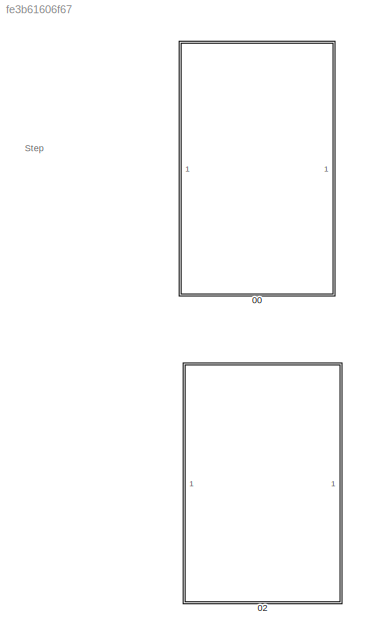
MODEL slx_fe3b61606f67
KIND model
CONFIG AbsTol = auto
CONFIG EnableMultiTasking = off
CONFIG FixedStep = auto
CONFIG MaxStep = auto
CONFIG MinStep = auto
CONFIG RelTol = 1e-3
CONFIG SampleTimeConstraint = Unconstrained
CONFIG SolverName = VariableStepAuto
CONFIG StartTime = 0.0
CONFIG StopTime = 1e-2
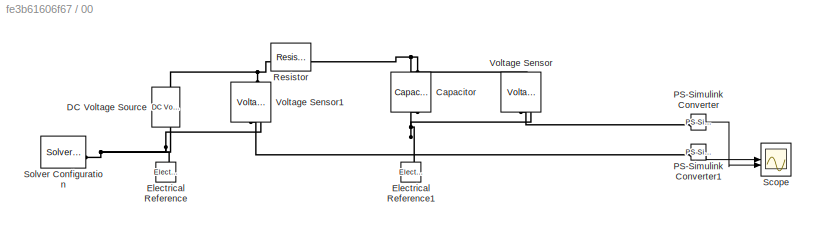
BLOCK [SubSystem] 00
BLOCK [Reference] 00/Capacitor  REF=fl_lib/Electrical/Electrical Elements/Capacitor
  NameLocation = left
  SourceBlock = fl_lib/Electrical/Electrical Elements/Capacitor
  SourceType = Capacitor
BLOCK [Reference] 00/DC Voltage Source  REF=fl_lib/Electrical/Electrical Sources/DC Voltage Source
  NameLocation = right
  SourceBlock = fl_lib/Electrical/Electrical Sources/DC Voltage Source
  SourceType = DC Voltage Source
BLOCK [Reference] 00/Electrical Reference  REF=fl_lib/Electrical/Electrical Elements/Electrical Reference
  NameLocation = right
  SourceBlock = fl_lib/Electrical/Electrical Elements/Electrical Reference
  SourceType = Electrical Reference
BLOCK [Reference] 00/Electrical Reference1  REF=fl_lib/Electrical/Electrical Elements/Electrical Reference
  NameLocation = right
  SourceBlock = fl_lib/Electrical/Electrical Elements/Electrical Reference
  SourceType = Electrical Reference
BLOCK [Reference] 00/PS-Simulink Converter  REF=nesl_utility/PS-Simulink
Converter
  SourceBlock = nesl_utility/PS-Simulink\nConverter
  SourceType = PS-Simulink\nConverter
BLOCK [Reference] 00/PS-Simulink Converter1  REF=nesl_utility/PS-Simulink
Converter
  SourceBlock = nesl_utility/PS-Simulink\nConverter
  SourceType = PS-Simulink\nConverter
BLOCK [Reference] 00/Resistor  REF=fl_lib/Electrical/Electrical Elements/Resistor
  SourceBlock = fl_lib/Electrical/Electrical Elements/Resistor
  SourceType = Resistor
BLOCK [Scope] 00/Scope
  Floating = off
  NumInputPorts = 2
  ScopeSpecificationString = Simulink.scopes.TimeScopeBlockCfg('CurrentConfiguration', extmgr.ConfigurationSet(extmgr.Configuration('Core','General UI',true),extmgr.Configuration('Core','Source UI',true),extmgr.Configuration('Sources','WiredSimulink',true),extmgr.Configuration('Visuals','Time Domain',true,'SerializedDisplays',{struct('MinYLimReal','-0.625','MaxYLimReal','5.625','YLabelReal','','MinYLimMag','0.00000','MaxYLimM...<+1892ch>
BLOCK [Reference] 00/Solver Configuration  REF=nesl_utility/Solver
Configuration
  SourceBlock = nesl_utility/Solver\nConfiguration
  SourceType = Solver\nConfiguration
BLOCK [Reference] 00/Voltage Sensor  REF=fl_lib/Electrical/Electrical Sensors/Voltage Sensor
  NameLocation = right
  SourceBlock = fl_lib/Electrical/Electrical Sensors/Voltage Sensor
  SourceType = Voltage Sensor
BLOCK [Reference] 00/Voltage Sensor1  REF=fl_lib/Electrical/Electrical Sensors/Voltage Sensor
  NameLocation = right
  SourceBlock = fl_lib/Electrical/Electrical Sensors/Voltage Sensor
  SourceType = Voltage Sensor
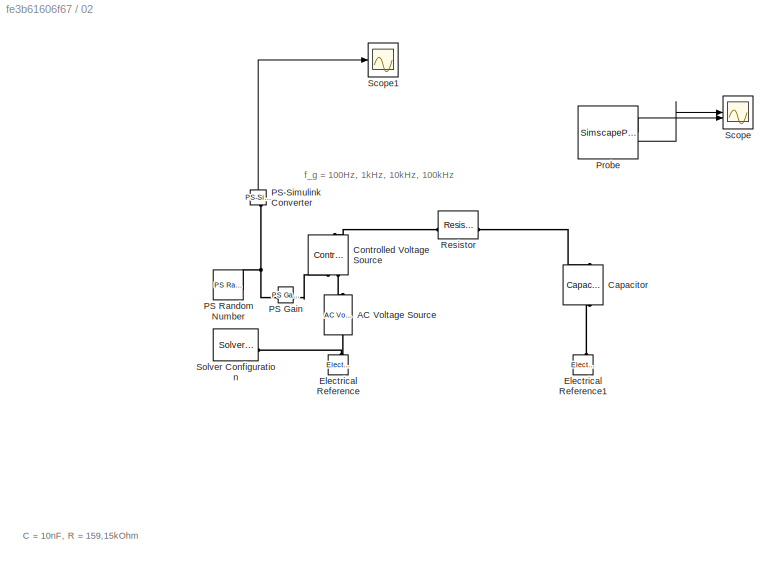
BLOCK [SubSystem] 02
BLOCK [Reference] 02/AC Voltage Source  REF=fl_lib/Electrical/Electrical Sources/AC Voltage Source
  NameLocation = right
  SourceBlock = fl_lib/Electrical/Electrical Sources/AC Voltage Source
  SourceType = AC Voltage Source
BLOCK [Reference] 02/Capacitor  REF=fl_lib/Electrical/Electrical Elements/Capacitor
  NameLocation = left
  SourceBlock = fl_lib/Electrical/Electrical Elements/Capacitor
  SourceType = Capacitor
BLOCK [Reference] 02/Controlled Voltage Source  REF=fl_lib/Electrical/Electrical Sources/Controlled Voltage
Source
  NameLocation = right
  SourceBlock = fl_lib/Electrical/Electrical Sources/Controlled Voltage\nSource
  SourceType = Controlled Voltage\nSource
BLOCK [Reference] 02/Electrical Reference  REF=fl_lib/Electrical/Electrical Elements/Electrical Reference
  NameLocation = right
  SourceBlock = fl_lib/Electrical/Electrical Elements/Electrical Reference
  SourceType = Electrical Reference
BLOCK [Reference] 02/Electrical Reference1  REF=fl_lib/Electrical/Electrical Elements/Electrical Reference
  NameLocation = right
  SourceBlock = fl_lib/Electrical/Electrical Elements/Electrical Reference
  SourceType = Electrical Reference
BLOCK [Reference] 02/PS Gain  REF=fl_lib/Physical Signals/Functions/PS Gain
  SourceBlock = fl_lib/Physical Signals/Functions/PS Gain
  SourceType = PS Gain
BLOCK [Reference] 02/PS Random Number  REF=fl_lib/Physical Signals/Sources/PS Random Number
  SourceBlock = fl_lib/Physical Signals/Sources/PS Random Number
  SourceType = PS Random Number
BLOCK [Reference] 02/PS-Simulink Converter  REF=nesl_utility/PS-Simulink
Converter
  NameLocation = right
  SourceBlock = nesl_utility/PS-Simulink\nConverter
  SourceType = PS-Simulink\nConverter
BLOCK [SimscapeProbe] 02/Probe
  BoundBlock = 79
  Variables = {"n.v":{"Unit":"V","PortLabel":"n.v","Probing":"ON"},"p.v":{"Unit":"V","PortLabel":"p.v","Probing":"ON"}}
BLOCK [Reference] 02/Resistor  REF=fl_lib/Electrical/Electrical Elements/Resistor
  SourceBlock = fl_lib/Electrical/Electrical Elements/Resistor
  SourceType = Resistor
BLOCK [Scope] 02/Scope
  Floating = off
  NumInputPorts = 2
  ScopeSpecificationString = Simulink.scopes.TimeScopeBlockCfg('CurrentConfiguration', extmgr.ConfigurationSet(extmgr.Configuration('Core','General UI',true),extmgr.Configuration('Core','Source UI',true),extmgr.Configuration('Sources','WiredSimulink',true,'DataLoggingVariableName','ScopeData1'),extmgr.Configuration('Visuals','Time Domain',true,'SerializedDisplays',{struct('MinYLimReal','-0.15329','MaxYLimReal','0.15128','YLab...<+1674ch>
BLOCK [Scope] 02/Scope1
  Floating = off
  NumInputPorts = 1
  ScopeSpecificationString = Simulink.scopes.TimeScopeBlockCfg('CurrentConfiguration', extmgr.ConfigurationSet(extmgr.Configuration('Core','General UI',true),extmgr.Configuration('Core','Source UI',true),extmgr.Configuration('Sources','WiredSimulink',true,'DataLoggingVariableName','ScopeData1'),extmgr.Configuration('Visuals','Time Domain',true,'SerializedDisplays',{struct('MinYLimReal','-0.09985','MaxYLimReal','0.09895','YLab...<+1543ch>
BLOCK [Reference] 02/Solver Configuration  REF=nesl_utility/Solver
Configuration
  SourceBlock = nesl_utility/Solver\nConfiguration
  SourceType = Solver\nConfiguration
ANNOTATION (root): Step
ANNOTATION 02: C = 10nF, R = 159,15kOhm
ANNOTATION 02: f_g = 100Hz, 1kHz, 10kHz, 100kHz
LINE 00/PS-Simulink Converter1:1 -> 00/Scope:1
LINE 00/PS-Simulink Converter:1 -> 00/Scope:2
LINE 02/PS-Simulink Converter:1 -> 02/Scope1:1
LINE 02/Probe:1 -> 02/Scope:2
LINE 02/Probe:2 -> 02/Scope:1
PNET net1: 00/Capacitor:LConn1 -- 00/Resistor:RConn1 -- 00/Voltage Sensor:LConn1
PNET net2: 00/Capacitor:RConn1 -- 00/Electrical Reference1:LConn1 -- 00/Voltage Sensor:RConn2
PNET net3: 00/DC Voltage Source:LConn1 -- 00/Resistor:LConn1 -- 00/Voltage Sensor1:LConn1
PNET net4: 00/DC Voltage Source:RConn1 -- 00/Electrical Reference:LConn1 -- 00/Solver Configuration:RConn1 -- 00/Voltage Sensor1:RConn2
PLINE 00/PS-Simulink Converter1:LConn1 -- 00/Voltage Sensor1:RConn1
PLINE 00/PS-Simulink Converter:LConn1 -- 00/Voltage Sensor:RConn1
PLINE 02/AC Voltage Source:LConn1 -- 02/Controlled Voltage Source:RConn2
PNET net5: 02/AC Voltage Source:RConn1 -- 02/Electrical Reference:LConn1 -- 02/Solver Configuration:RConn1
PLINE 02/Capacitor:LConn1 -- 02/Resistor:RConn1
PLINE 02/Capacitor:RConn1 -- 02/Electrical Reference1:LConn1
PLINE 02/Controlled Voltage Source:LConn1 -- 02/Resistor:LConn1
PLINE 02/Controlled Voltage Source:RConn1 -- 02/PS Gain:RConn1
PNET net6: 02/PS Gain:LConn1 -- 02/PS Random Number:RConn1 -- 02/PS-Simulink Converter:LConn1
note: PNET lines group multi-terminal physical nets as a canonical sorted terminal list (undirected conserving connections); 2-terminal nets keep the pairwise PLINE form
